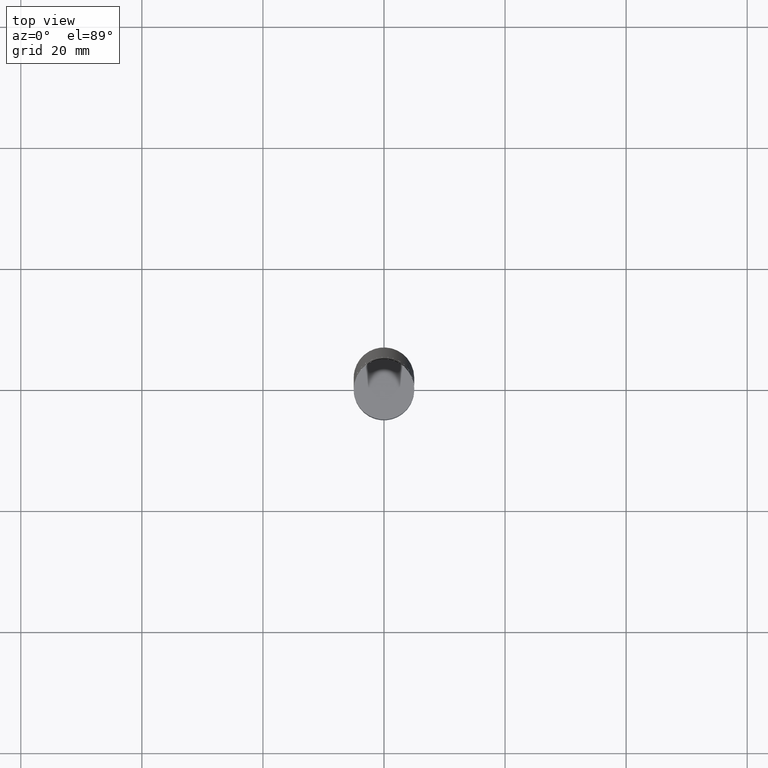
[diagram: clean part render]
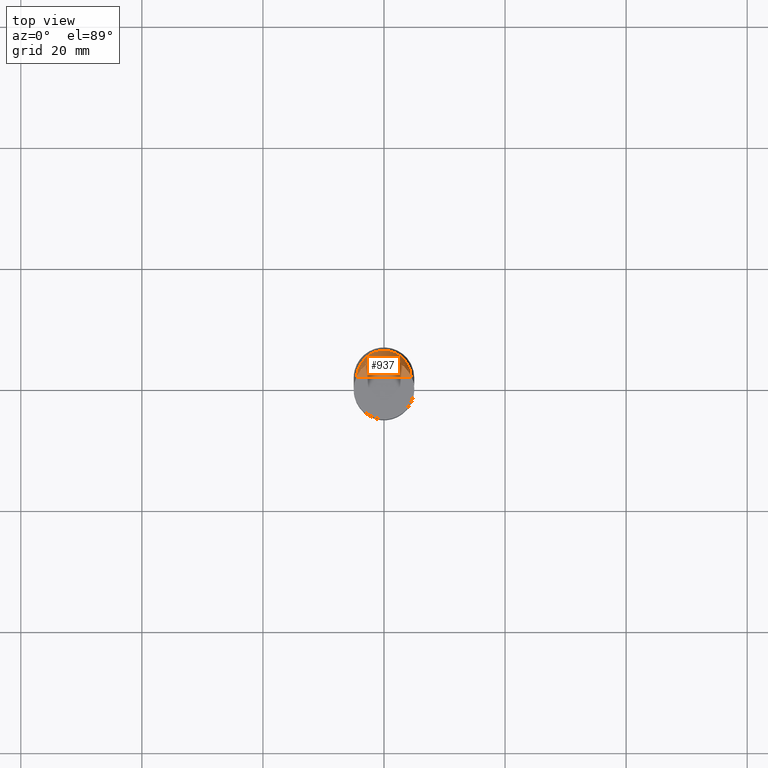
[diagram: same view with one face highlighted and labeled with its STEP entity id]
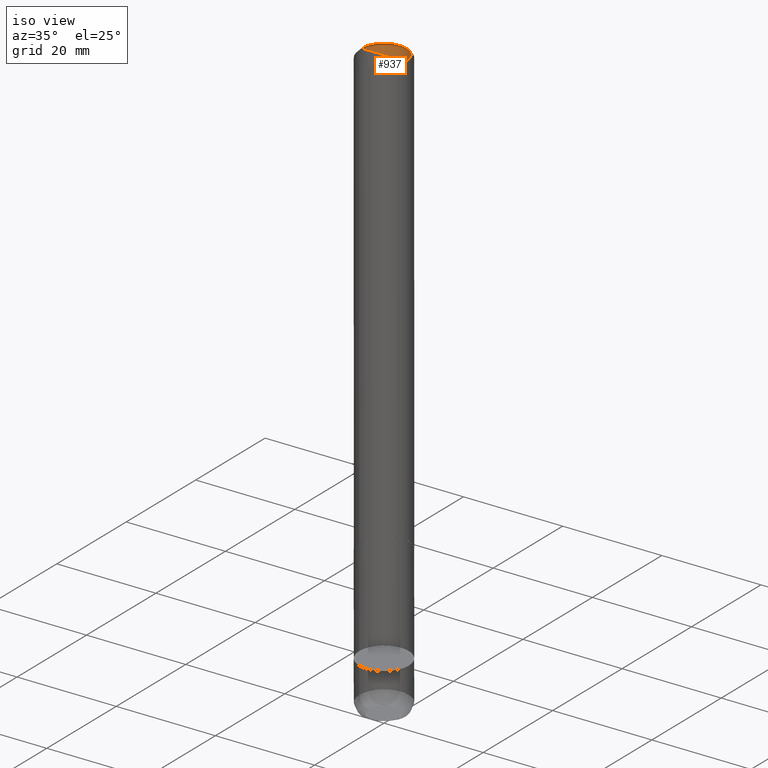
[diagram: same view with one face highlighted and labeled with its STEP entity id]
A machine part, top view. The second image highlights one B-rep face of the part: STEP entity #937.
A second angle (iso view) of the same face is appended — the face is thin or edge-on in the first view.
In plain terms, the highlighted face is a freeform B-spline surface patch.
Its self-contained STEP definition (entity closure, byte-faithful):
#676=CARTESIAN_POINT('',(4.5,0.0,90.0));
#677=CARTESIAN_POINT('',(4.5,4.5,90.0));
#678=CARTESIAN_POINT('',(0.0,4.5,90.0));
#679=CARTESIAN_POINT('',(-4.5,4.5,90.0));
#680=CARTESIAN_POINT('',(-4.5,0.0,90.0));
#681=CARTESIAN_POINT('',(0.0,0.0,90.0));
#922=(
BOUNDED_SURFACE()
B_SPLINE_SURFACE(1,2,(
(#676,#677,#678,#679,#680),
(#681,#681,#681,#681,#681)
), .UNSPECIFIED.,.F.,.F.,.F.)
B_SPLINE_SURFACE_WITH_KNOTS((2,2),(3,2,3),(
0.0,1.0),(
0.0,0.5,1.0), .UNSPECIFIED.)
GEOMETRIC_REPRESENTATION_ITEM()
RATIONAL_B_SPLINE_SURFACE(((1.0,0.707106781187,1.0,0.707106781187,1.0),
(1.0,0.707106781187,1.0,0.707106781187,1.0)
))
REPRESENTATION_ITEM('')
SURFACE()
);
#923=(
BOUNDED_CURVE()
B_SPLINE_CURVE(1,(#681,#676),.UNSPECIFIED.,.F.,.F.)
B_SPLINE_CURVE_WITH_KNOTS((2,2),
(0.0,1.0),.UNSPECIFIED.)
CURVE()
GEOMETRIC_REPRESENTATION_ITEM()
RATIONAL_B_SPLINE_CURVE((1.0,1.0))
REPRESENTATION_ITEM('')
);
#924=(
BOUNDED_CURVE()
B_SPLINE_CURVE(2,(#676,#677,#678,#679,#680),.UNSPECIFIED.,.F.,.F.)
B_SPLINE_CURVE_WITH_KNOTS((3,2,3),
(0.0,0.5,1.0),.UNSPECIFIED.)
CURVE()
GEOMETRIC_REPRESENTATION_ITEM()
RATIONAL_B_SPLINE_CURVE((1.0,0.707106781187,1.0,0.707106781187,1.0))
REPRESENTATION_ITEM('')
);
#925=(
BOUNDED_CURVE()
B_SPLINE_CURVE(1,(#680,#681),.UNSPECIFIED.,.F.,.F.)
B_SPLINE_CURVE_WITH_KNOTS((2,2),
(0.0,1.0),.UNSPECIFIED.)
CURVE()
GEOMETRIC_REPRESENTATION_ITEM()
RATIONAL_B_SPLINE_CURVE((1.0,1.0))
REPRESENTATION_ITEM('')
);
#926=VERTEX_POINT('',#676);
#927=VERTEX_POINT('',#680);
#928=VERTEX_POINT('',#681);
#929=EDGE_CURVE('',#928,#926,#923,.T.);
#930=EDGE_CURVE('',#926,#927,#924,.T.);
#931=EDGE_CURVE('',#927,#928,#925,.T.);
#932=ORIENTED_EDGE('',*,*,#929,.T.);
#933=ORIENTED_EDGE('',*,*,#930,.T.);
#934=ORIENTED_EDGE('',*,*,#931,.T.);
#935=EDGE_LOOP('',(#932,#933,#934));
#936=FACE_OUTER_BOUND('',#935,.T.);
#937=ADVANCED_FACE('',(#936),#922,.T.);